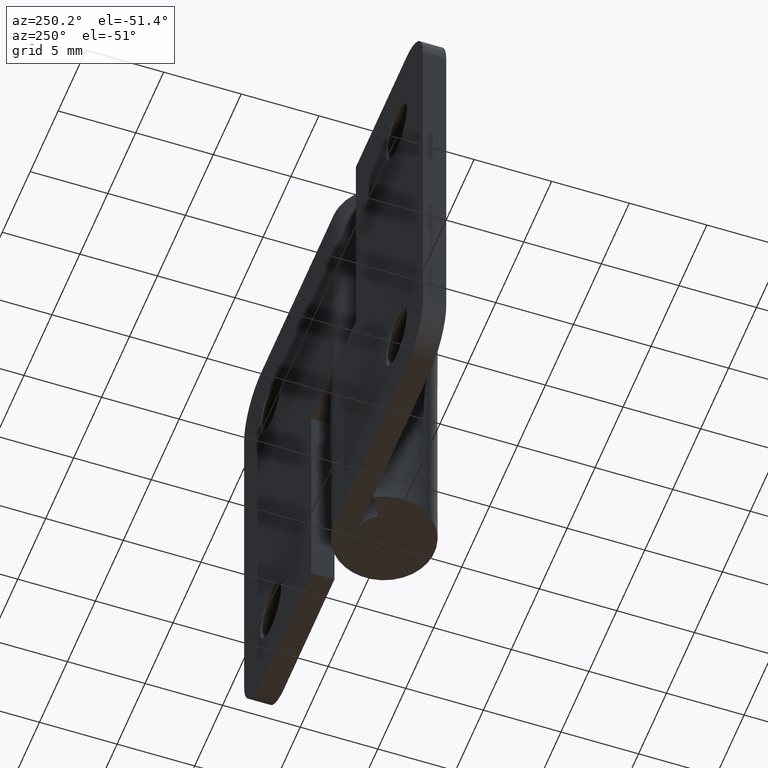
[diagram: clean part render]
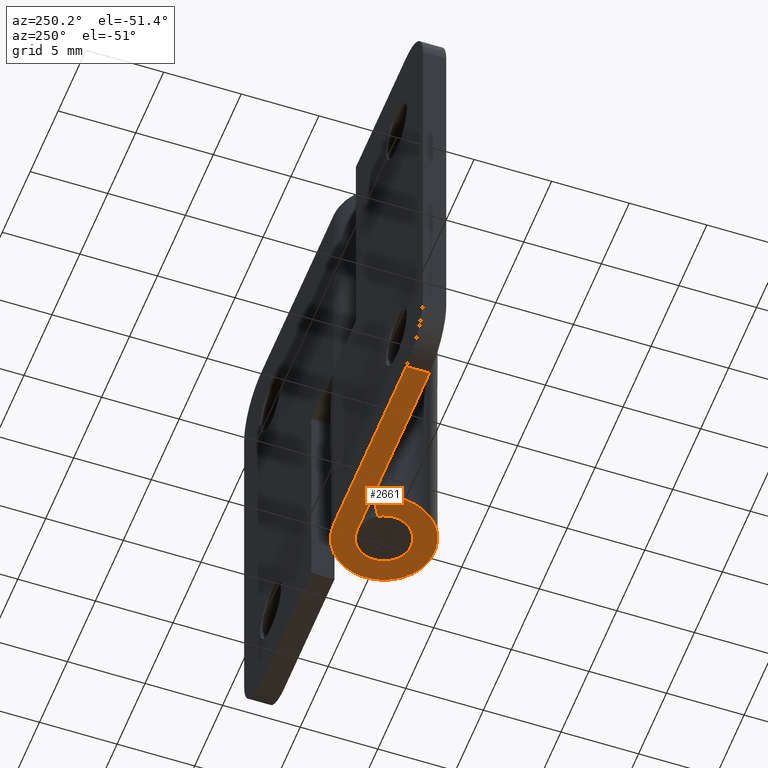
[diagram: same view with one face highlighted and labeled with its STEP entity id]
A machine part, auxiliary view. The second image highlights one B-rep face of the part: STEP entity #2661.
In plain terms, the highlighted face is a freeform B-spline surface patch.
Its self-contained STEP definition (entity closure, byte-faithful):
#2461=CARTESIAN_POINT('',(-13.0,1.750000000000030,0.0));
#2462=VERTEX_POINT('',#2461);
#2483=CARTESIAN_POINT('',(-13.0,3.250000000000000,0.0));
#2484=VERTEX_POINT('',#2483);
#2498=CARTESIAN_POINT('',(-13.0,3.250000000000000,0.0));
#2499=CARTESIAN_POINT('',(-13.0,1.750000000000030,0.0));
#2500=QUASI_UNIFORM_CURVE('',1,(#2498,#2499),.UNSPECIFIED.,.F.,.U.);
#2501=EDGE_CURVE('',#2484,#2462,#2500,.T.);
#2528=CARTESIAN_POINT('',(-1.491499582942334,0.915384615384615,0.0));
#2529=VERTEX_POINT('',#2528);
#2536=CARTESIAN_POINT('',(1.071531E-016,1.750000000000000,0.0));
#2537=VERTEX_POINT('',#2536);
#2543=CARTESIAN_POINT('',(0.0,1.750000000000000,0.0));
#2544=CARTESIAN_POINT('',(1.352180954002867,1.750000000000001,0.0));
#2545=CARTESIAN_POINT('',(1.693373332936189,0.441573046392760,0.0));
#2546=CARTESIAN_POINT('',(2.034565711869511,-0.866853907214480,0.0));
#2547=CARTESIAN_POINT('',(0.854569167205594,-1.527157993942192,0.0));
#2548=CARTESIAN_POINT('',(-0.325427377458324,-2.187462080669902,0.0));
#2549=CARTESIAN_POINT('',(-1.262110806631848,-1.212260826630600,0.0));
#2550=CARTESIAN_POINT('',(-2.198794235805374,-0.237059572591296,0.0));
#2551=CARTESIAN_POINT('',(-1.491499582942335,0.915384615384616,0.0));
#2559=(BOUNDED_CURVE()B_SPLINE_CURVE(2,(#2543,#2544,#2545,#2546,#2547,#2548,#2549,#2550,#2551),.UNSPECIFIED.,.F.,.U.)B_SPLINE_CURVE_WITH_KNOTS((3,2,2,2,3),(0.0,0.250000000000000,0.500000000000000,0.750000000000000,1.0),.UNSPECIFIED.)CURVE()GEOMETRIC_REPRESENTATION_ITEM()RATIONAL_B_SPLINE_CURVE((1.0,0.791305078677490,1.0,0.791305078677490,1.0,0.791305078677490,1.0,0.791305078677490,1.0))REPRESENTATION_ITEM(''));
#2560=EDGE_CURVE('',#2537,#2529,#2559,.T.);
#2572=CARTESIAN_POINT('',(-2.769927796892910,1.700000000000000,0.0));
#2573=VERTEX_POINT('',#2572);
#2574=CARTESIAN_POINT('',(-2.769927796892910,1.700000000000000,0.0));
#2575=CARTESIAN_POINT('',(-1.491499582942334,0.915384615384615,0.0));
#2576=QUASI_UNIFORM_CURVE('',1,(#2574,#2575),.UNSPECIFIED.,.F.,.U.);
#2577=EDGE_CURVE('',#2573,#2529,#2576,.T.);
#2611=CARTESIAN_POINT('',(-5.969956E-016,3.250000000000000,0.0));
#2612=VERTEX_POINT('',#2611);
#2613=CARTESIAN_POINT('',(0.0,3.250000000000000,0.0));
#2614=CARTESIAN_POINT('',(2.511193200291035,3.250000000000000,0.0));
#2615=CARTESIAN_POINT('',(3.144836189738636,0.820064229015129,0.0));
#2616=CARTESIAN_POINT('',(3.778479179186237,-1.609871541969746,0.0));
#2617=CARTESIAN_POINT('',(1.587057024810390,-2.836150560178354,0.0));
#2618=CARTESIAN_POINT('',(-0.604365129565457,-4.062429578386963,0.0));
#2619=CARTESIAN_POINT('',(-2.343920069459146,-2.251341535171115,0.0));
#2620=CARTESIAN_POINT('',(-4.083475009352835,-0.440253491955268,0.0));
#2621=CARTESIAN_POINT('',(-2.769927796892911,1.699999999999996,0.0));
#2629=(BOUNDED_CURVE()B_SPLINE_CURVE(2,(#2613,#2614,#2615,#2616,#2617,#2618,#2619,#2620,#2621),.UNSPECIFIED.,.F.,.U.)B_SPLINE_CURVE_WITH_KNOTS((3,2,2,2,3),(0.0,0.250000000000000,0.500000000000000,0.750000000000000,1.0),.UNSPECIFIED.)CURVE()GEOMETRIC_REPRESENTATION_ITEM()RATIONAL_B_SPLINE_CURVE((1.0,0.791305078677490,1.0,0.791305078677490,1.0,0.791305078677490,1.0,0.791305078677490,1.0))REPRESENTATION_ITEM(''));
#2630=EDGE_CURVE('',#2612,#2573,#2629,.T.);
#2640=CARTESIAN_POINT('',(-13.811682205043230,-3.574231934121260,0.0));
#2641=CARTESIAN_POINT('',(4.061577266298251,-3.574231934121260,0.0));
#2642=CARTESIAN_POINT('',(-13.811682205043230,3.574654084053601,0.0));
#2643=CARTESIAN_POINT('',(4.061577266298251,3.574654084053601,0.0));
#2644=B_SPLINE_SURFACE_WITH_KNOTS('',1,1,((#2640,#2642),(#2641,#2643)),.UNSPECIFIED.,.F.,.F.,.U.,(2,2),(2,2),(0.0,17.873259471341481),(0.0,7.148886018174862),.UNSPECIFIED.);
#2645=CARTESIAN_POINT('',(1.071531E-016,1.750000000000000,0.0));
#2646=CARTESIAN_POINT('',(-13.0,1.750000000000030,0.0));
#2647=QUASI_UNIFORM_CURVE('',1,(#2645,#2646),.UNSPECIFIED.,.F.,.U.);
#2648=EDGE_CURVE('',#2537,#2462,#2647,.T.);
#2649=ORIENTED_EDGE('',*,*,#2648,.T.);
#2650=ORIENTED_EDGE('',*,*,#2501,.F.);
#2651=CARTESIAN_POINT('',(-13.0,3.250000000000000,0.0));
#2652=CARTESIAN_POINT('',(-5.969956E-016,3.250000000000000,0.0));
#2653=QUASI_UNIFORM_CURVE('',1,(#2651,#2652),.UNSPECIFIED.,.F.,.U.);
#2654=EDGE_CURVE('',#2484,#2612,#2653,.T.);
#2655=ORIENTED_EDGE('',*,*,#2654,.T.);
#2656=ORIENTED_EDGE('',*,*,#2630,.T.);
#2657=ORIENTED_EDGE('',*,*,#2577,.T.);
#2658=ORIENTED_EDGE('',*,*,#2560,.F.);
#2659=EDGE_LOOP('',(#2649,#2650,#2655,#2656,#2657,#2658));
#2660=FACE_OUTER_BOUND('',#2659,.T.);
#2661=ADVANCED_FACE('',(#2660),#2644,.F.);